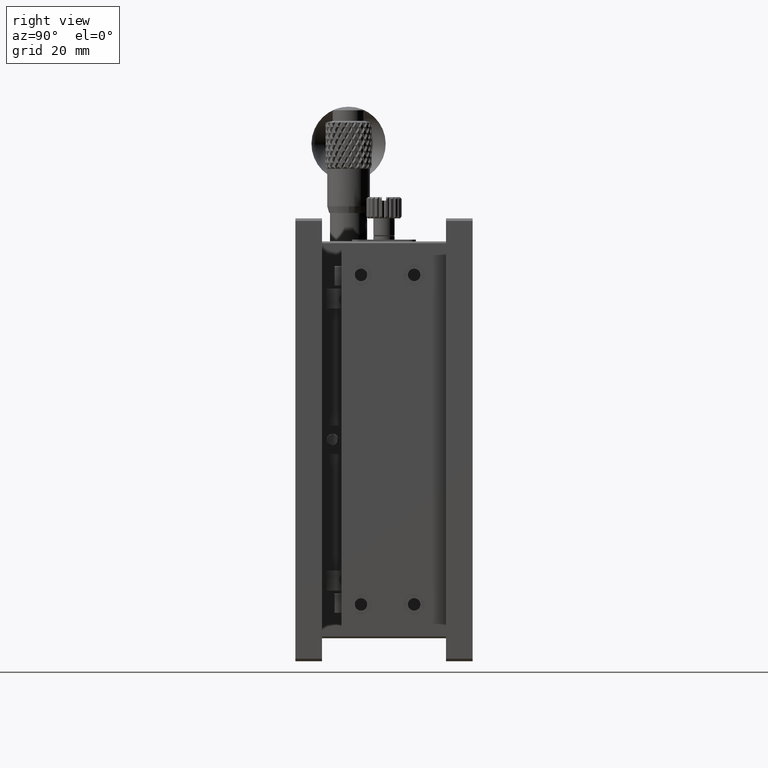
[diagram: clean part render]
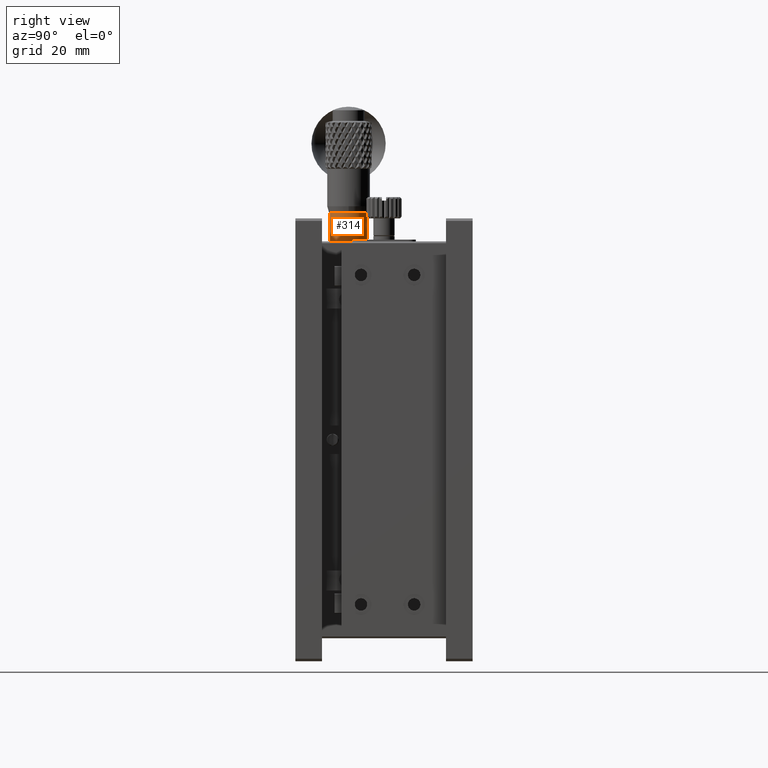
[diagram: same view with one face highlighted and labeled with its STEP entity id]
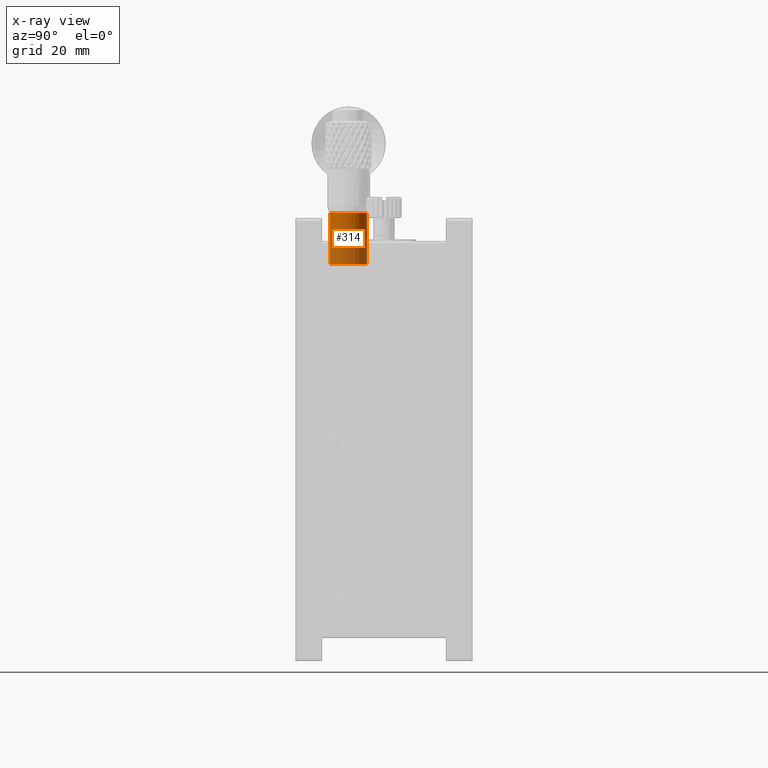
[diagram: x-ray of the same camera — body ghosted, the highlighted face saturated]
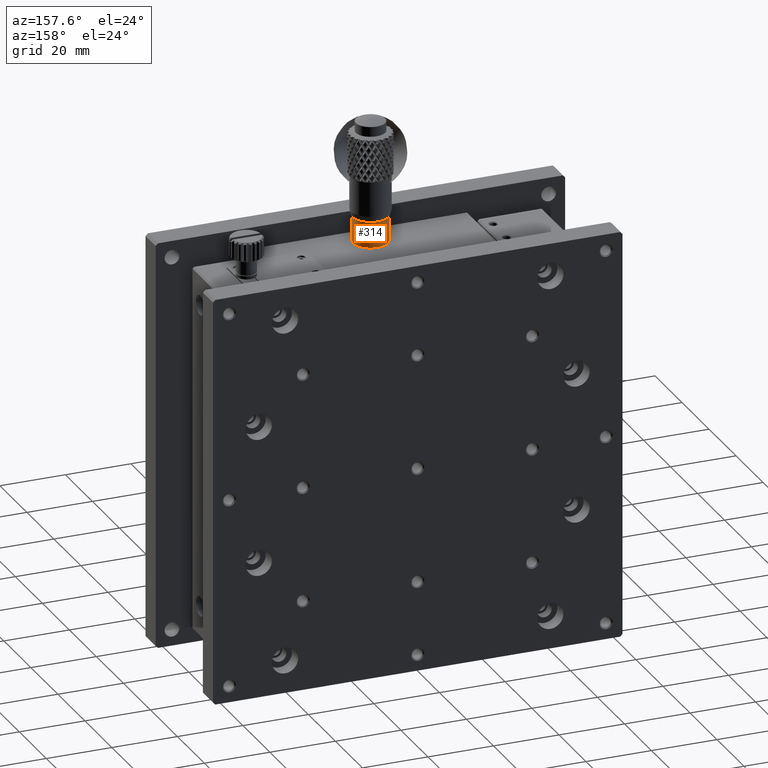
[diagram: same view with one face highlighted and labeled with its STEP entity id]
A machine part, right view. The second image highlights one B-rep face of the part: STEP entity #314.
The next image is the same camera in x-ray: the body ghosted, the highlighted face saturated — about 46% of this face is hidden behind the body in this view.
A second angle (auxiliary view) of the same face is appended — the face is thin or edge-on in the first view.
In plain terms, the highlighted cylindrical surface (bore or boss wall) has radius 5.25 mm, axis along (0, 0, -1).
Its self-contained STEP definition (entity closure, byte-faithful):
#314 = ADVANCED_FACE ( 'NONE', ( #6150, #43994 ), #10442, .T. ) ;
#6150 = FACE_OUTER_BOUND ( 'NONE', #45341, .T. ) ;
#8927 = VERTEX_POINT ( 'NONE', #46768 ) ;
#10250 = DIRECTION ( 'NONE',  ( -0.000000000000000000, -6.072288236963999812E-17, 1.000000000000000000 ) ) ;
#10442 = CYLINDRICAL_SURFACE ( 'NONE', #14725, 5.250000000000000888 ) ;
#10713 = DIRECTION ( 'NONE',  ( 0.000000000000000000, -1.000000000000000000, 0.000000000000000000 ) ) ;
#13665 = DIRECTION ( 'NONE',  ( 0.000000000000000000, 6.072288236963999812E-17, -1.000000000000000000 ) ) ;
#13926 = CARTESIAN_POINT ( 'NONE',  ( 62.50000000000000000, 15.00000000000000178, 1.497999999999999332 ) ) ;
#14295 = DIRECTION ( 'NONE',  ( 0.000000000000000000, -1.000000000000000000, 0.000000000000000000 ) ) ;
#14485 = DIRECTION ( 'NONE',  ( 0.000000000000000000, 6.072288236963999812E-17, -1.000000000000000000 ) ) ;
#14725 = AXIS2_PLACEMENT_3D ( 'NONE', #35938, #14485, #10713 ) ;
#15477 = EDGE_CURVE ( 'NONE', #8927, #8927, #32286, .T. ) ;
#17555 = AXIS2_PLACEMENT_3D ( 'NONE', #13926, #13665, #21705 ) ;
#19490 = VERTEX_POINT ( 'NONE', #48446 ) ;
#20982 = CIRCLE ( 'NONE', #17555, 5.249999999999999112 ) ;
#21152 = AXIS2_PLACEMENT_3D ( 'NONE', #46484, #10250, #14295 ) ;
#21705 = DIRECTION ( 'NONE',  ( 0.000000000000000000, -1.000000000000000000, -4.130293990420970006E-17 ) ) ;
#25001 = ORIENTED_EDGE ( 'NONE', *, *, #15477, .T. ) ;
#32286 = CIRCLE ( 'NONE', #21152, 5.250000000000000888 ) ;
#35938 = CARTESIAN_POINT ( 'NONE',  ( 62.50000000000000000, 15.00000000000000355, -19.50000000000000355 ) ) ;
#42879 = ORIENTED_EDGE ( 'NONE', *, *, #43438, .T. ) ;
#43438 = EDGE_CURVE ( 'NONE', #19490, #19490, #20982, .T. ) ;
#43994 = FACE_OUTER_BOUND ( 'NONE', #49865, .T. ) ;
#45341 = EDGE_LOOP ( 'NONE', ( #42879 ) ) ;
#46484 = CARTESIAN_POINT ( 'NONE',  ( 62.50000000000000000, 15.00000000000000355, -13.00200000000000600 ) ) ;
#46768 = CARTESIAN_POINT ( 'NONE',  ( 62.50000000000000000, 9.750000000000001776, -13.00200000000000600 ) ) ;
#48446 = CARTESIAN_POINT ( 'NONE',  ( 62.50000000000000000, 9.750000000000001776, 1.497999999999999110 ) ) ;
#49865 = EDGE_LOOP ( 'NONE', ( #25001 ) ) ;